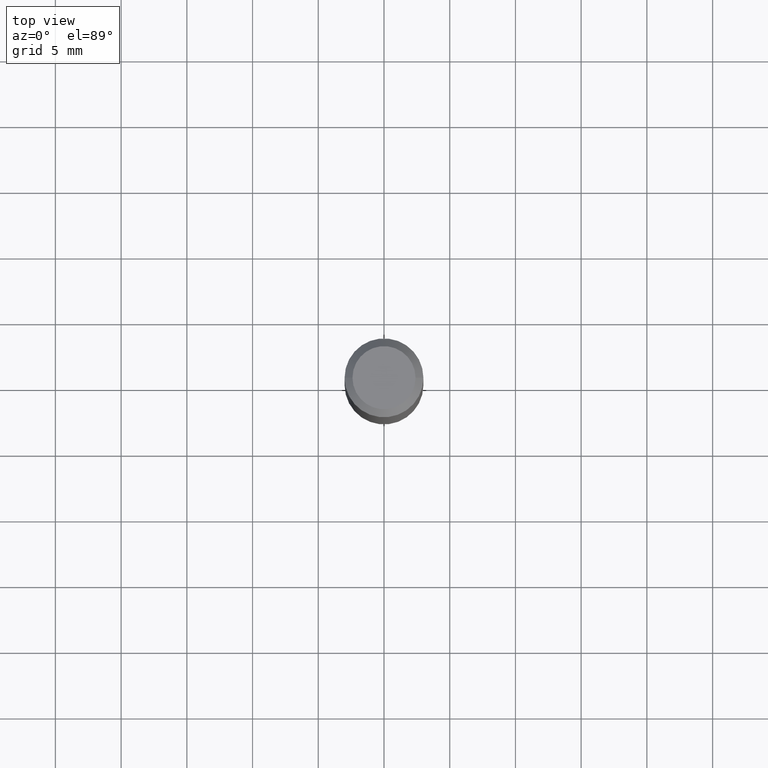
[diagram: clean part render]
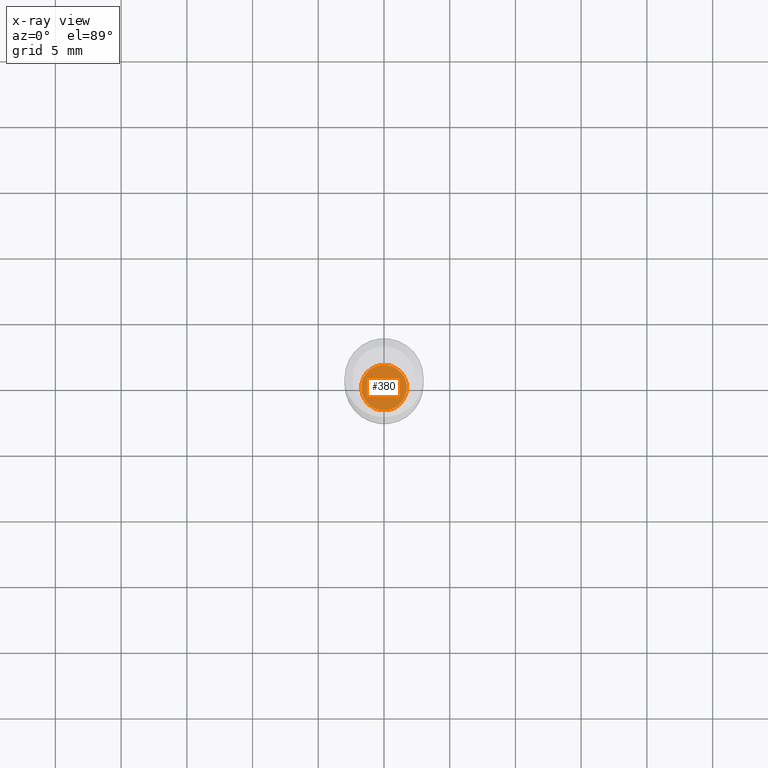
[diagram: x-ray — body ghosted, one internal face saturated and labeled with its STEP entity id]
A machine part, top view, then the same camera in x-ray: the body is ghosted and one INTERNAL B-rep face — a face not visible from any outside direction — is saturated and labeled: STEP entity #380.
In plain terms, the highlighted planar face has unit normal (-0, 0, 1).
Its self-contained STEP definition (entity closure, byte-faithful):
#1 = DIRECTION ( 'NONE',  ( -2.445468806185136597E-29, 3.491481338843145583E-15, 1.000000000000000000 ) ) ;
#9 = DIRECTION ( 'NONE',  ( -2.445468806185136597E-29, 3.491481338843145583E-15, 1.000000000000000000 ) ) ;
#44 = EDGE_CURVE ( 'NONE', #400, #362, #288, .T. ) ;
#84 = DIRECTION ( 'NONE',  ( 1.000000000000000000, -6.982962677686265922E-15, 4.876176775795935793E-29 ) ) ;
#90 = DIRECTION ( 'NONE',  ( 1.000000000000000000, -6.982962677686273810E-15, 0.000000000000000000 ) ) ;
#112 = ORIENTED_EDGE ( 'NONE', *, *, #464, .F. ) ;
#126 = CARTESIAN_POINT ( 'NONE',  ( 0.06840000000000000246, -6.498345067854860475E-15, -1.724399999999999711 ) ) ;
#130 = AXIS2_PLACEMENT_3D ( 'NONE', #200, #323, #84 ) ;
#147 = CIRCLE ( 'NONE', #509, 0.06840000000000000246 ) ;
#177 = ORIENTED_EDGE ( 'NONE', *, *, #44, .F. ) ;
#196 = AXIS2_PLACEMENT_3D ( 'NONE', #349, #1, #350 ) ;
#200 = CARTESIAN_POINT ( 'NONE',  ( 4.216966409385649156E-29, -6.020710420701119744E-15, -1.724399999999999711 ) ) ;
#263 = EDGE_LOOP ( 'NONE', ( #112, #177 ) ) ;
#277 = PLANE ( 'NONE',  #130 ) ;
#284 = FACE_OUTER_BOUND ( 'NONE', #263, .T. ) ;
#288 = CIRCLE ( 'NONE', #196, 0.06840000000000000246 ) ;
#318 = CARTESIAN_POINT ( 'NONE',  ( 4.216966409385649156E-29, -6.020710420701119744E-15, -1.724399999999999711 ) ) ;
#323 = DIRECTION ( 'NONE',  ( -2.438088387897960049E-29, 3.491481338843145188E-15, 1.000000000000000000 ) ) ;
#349 = CARTESIAN_POINT ( 'NONE',  ( 4.216966409385649156E-29, -6.020710420701119744E-15, -1.724399999999999711 ) ) ;
#350 = DIRECTION ( 'NONE',  ( 1.000000000000000000, -6.982962677686273810E-15, 0.000000000000000000 ) ) ;
#362 = VERTEX_POINT ( 'NONE', #126 ) ;
#380 = ADVANCED_FACE ( 'NONE', ( #284 ), #277, .F. ) ;
#400 = VERTEX_POINT ( 'NONE', #488 ) ;
#464 = EDGE_CURVE ( 'NONE', #362, #400, #147, .T. ) ;
#488 = CARTESIAN_POINT ( 'NONE',  ( -0.06840000000000000246, -5.532049962267099900E-15, -1.724399999999999711 ) ) ;
#509 = AXIS2_PLACEMENT_3D ( 'NONE', #318, #9, #90 ) ;